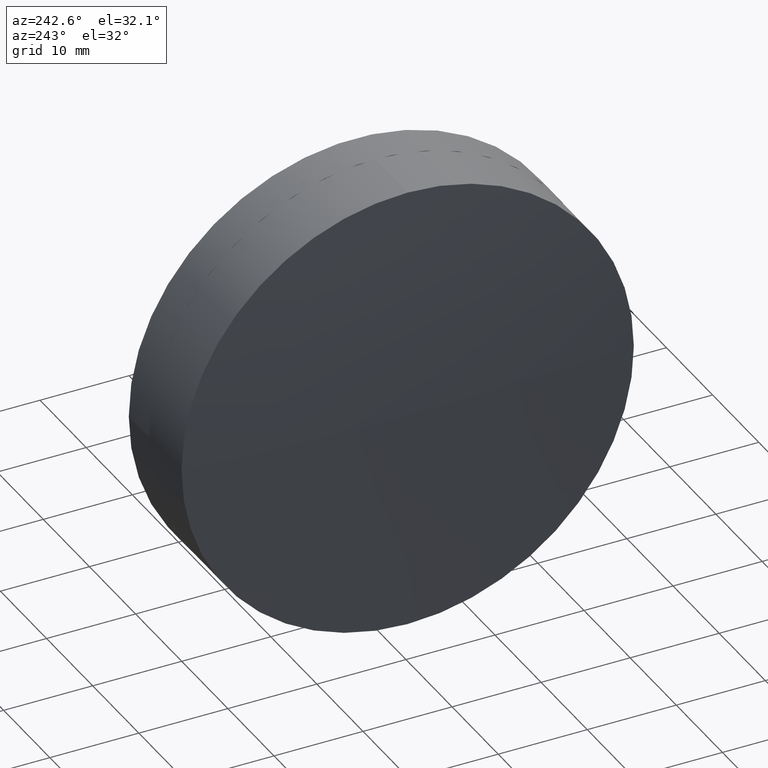
[diagram: clean part render]
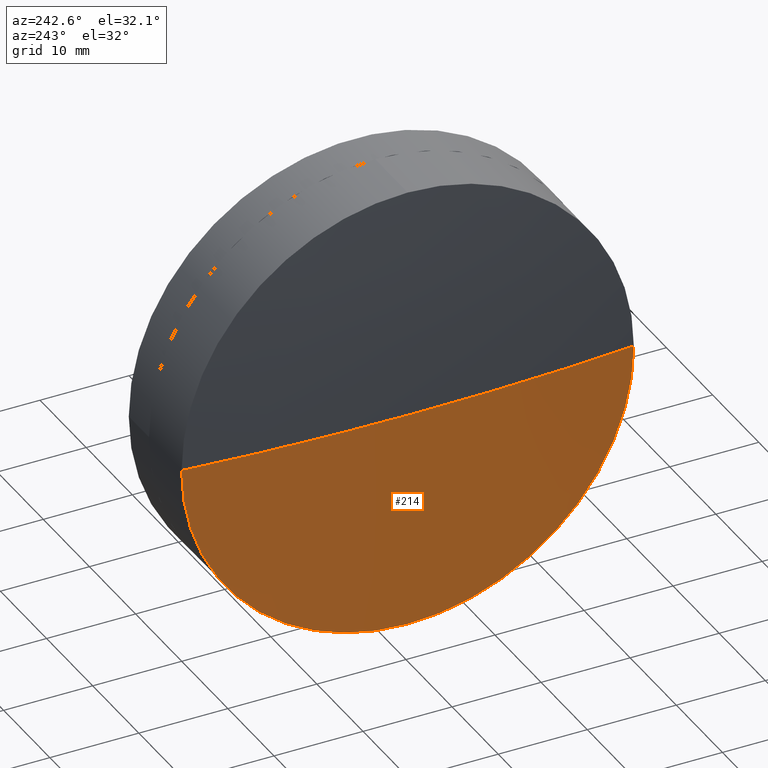
[diagram: same view with one face highlighted and labeled with its STEP entity id]
A machine part, auxiliary view. The second image highlights one B-rep face of the part: STEP entity #214.
In plain terms, the highlighted spherical surface has radius 276.42 mm.
Its self-contained STEP definition (entity closure, byte-faithful):
#11 = CIRCLE ( 'NONE', #65, 276.4200000000000159 ) ;
#20 = CIRCLE ( 'NONE', #57, 25.39999999999999858 ) ;
#35 = CARTESIAN_POINT ( 'NONE',  ( -105.7255114087630972, 17.58894564919701509, -25.39999999999999858 ) ) ;
#57 = AXIS2_PLACEMENT_3D ( 'NONE', #139, #375, #345 ) ;
#58 = AXIS2_PLACEMENT_3D ( 'NONE', #301, #240, #362 ) ;
#59 = VERTEX_POINT ( 'NONE', #147 ) ;
#65 = AXIS2_PLACEMENT_3D ( 'NONE', #268, #360, #302 ) ;
#67 = CARTESIAN_POINT ( 'NONE',  ( 169.5250224690116170, 17.58894564919701153, 0.000000000000000000 ) ) ;
#69 = DIRECTION ( 'NONE',  ( 0.000000000000000000, 1.000000000000000000, 0.000000000000000000 ) ) ;
#73 = DIRECTION ( 'NONE',  ( 0.000000000000000000, 1.224646799147353207E-16, -1.000000000000000000 ) ) ;
#83 = ORIENTED_EDGE ( 'NONE', *, *, #376, .T. ) ;
#87 = ORIENTED_EDGE ( 'NONE', *, *, #252, .T. ) ;
#98 = CIRCLE ( 'NONE', #155, 276.4200000000000159 ) ;
#112 = VERTEX_POINT ( 'NONE', #315 ) ;
#114 = VERTEX_POINT ( 'NONE', #35 ) ;
#118 = EDGE_LOOP ( 'NONE', ( #341, #83, #87, #307 ) ) ;
#139 = CARTESIAN_POINT ( 'NONE',  ( -105.7255114087630972, 17.58894564919701153, 0.000000000000000000 ) ) ;
#147 = CARTESIAN_POINT ( 'NONE',  ( -105.7255114087630972, 42.98894564919707051, 0.000000000000000000 ) ) ;
#153 = DIRECTION ( 'NONE',  ( -0.000000000000000000, 0.000000000000000000, -1.000000000000000000 ) ) ;
#155 = AXIS2_PLACEMENT_3D ( 'NONE', #179, #73, #330 ) ;
#169 = FACE_OUTER_BOUND ( 'NONE', #118, .T. ) ;
#179 = CARTESIAN_POINT ( 'NONE',  ( 169.5250224690116170, 17.58894564919701153, 0.000000000000000000 ) ) ;
#199 = EDGE_CURVE ( 'NONE', #59, #114, #20, .T. ) ;
#214 = ADVANCED_FACE ( 'NONE', ( #169 ), #236, .T. ) ;
#217 = VERTEX_POINT ( 'NONE', #325 ) ;
#236 = SPHERICAL_SURFACE ( 'NONE', #340, 276.4200000000000159 ) ;
#240 = DIRECTION ( 'NONE',  ( -1.000000000000000000, -0.000000000000000000, -0.000000000000000000 ) ) ;
#252 = EDGE_CURVE ( 'NONE', #112, #217, #98, .T. ) ;
#268 = CARTESIAN_POINT ( 'NONE',  ( 169.5250224690116170, 17.58894564919701153, 0.000000000000000000 ) ) ;
#301 = CARTESIAN_POINT ( 'NONE',  ( -105.7255114087630972, 17.58894564919701153, 0.000000000000000000 ) ) ;
#302 = DIRECTION ( 'NONE',  ( 1.000000000000000000, 0.000000000000000000, 0.000000000000000000 ) ) ;
#307 = ORIENTED_EDGE ( 'NONE', *, *, #324, .F. ) ;
#315 = CARTESIAN_POINT ( 'NONE',  ( -105.7255114087630972, -7.811054350803045665, -3.110602869834283965E-15 ) ) ;
#324 = EDGE_CURVE ( 'NONE', #59, #217, #11, .T. ) ;
#325 = CARTESIAN_POINT ( 'NONE',  ( -106.8949775309883989, 17.58894564919702930, 0.000000000000000000 ) ) ;
#330 = DIRECTION ( 'NONE',  ( 0.000000000000000000, 1.000000000000000000, 1.224646799147353207E-16 ) ) ;
#333 = CIRCLE ( 'NONE', #58, 25.39999999999999858 ) ;
#340 = AXIS2_PLACEMENT_3D ( 'NONE', #67, #153, #69 ) ;
#341 = ORIENTED_EDGE ( 'NONE', *, *, #199, .T. ) ;
#345 = DIRECTION ( 'NONE',  ( 0.000000000000000000, 0.000000000000000000, 1.000000000000000000 ) ) ;
#360 = DIRECTION ( 'NONE',  ( -0.000000000000000000, 0.000000000000000000, 1.000000000000000000 ) ) ;
#362 = DIRECTION ( 'NONE',  ( 0.000000000000000000, 0.000000000000000000, 1.000000000000000000 ) ) ;
#375 = DIRECTION ( 'NONE',  ( -1.000000000000000000, -0.000000000000000000, -0.000000000000000000 ) ) ;
#376 = EDGE_CURVE ( 'NONE', #114, #112, #333, .T. ) ;